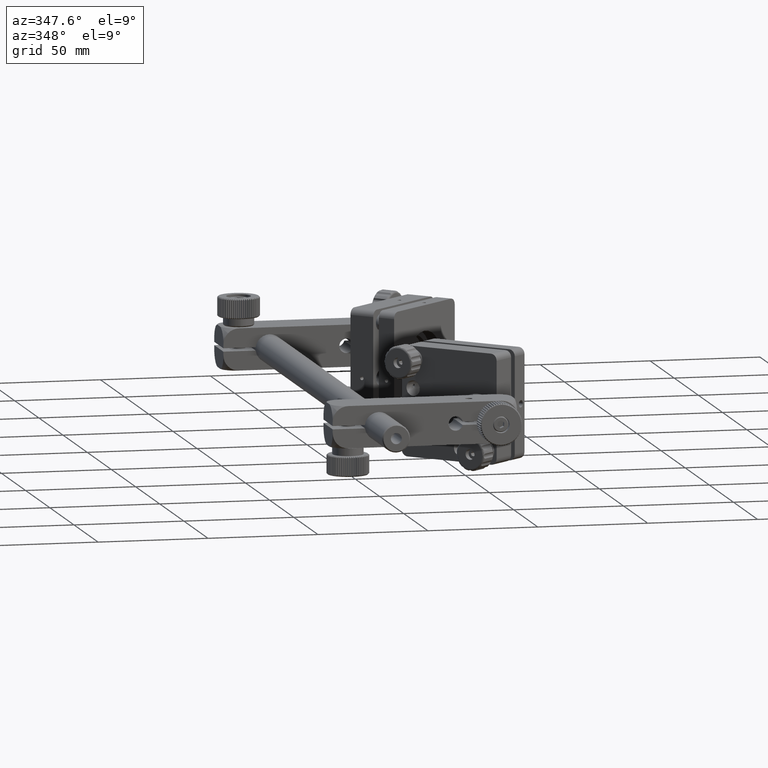
[diagram: clean part render]
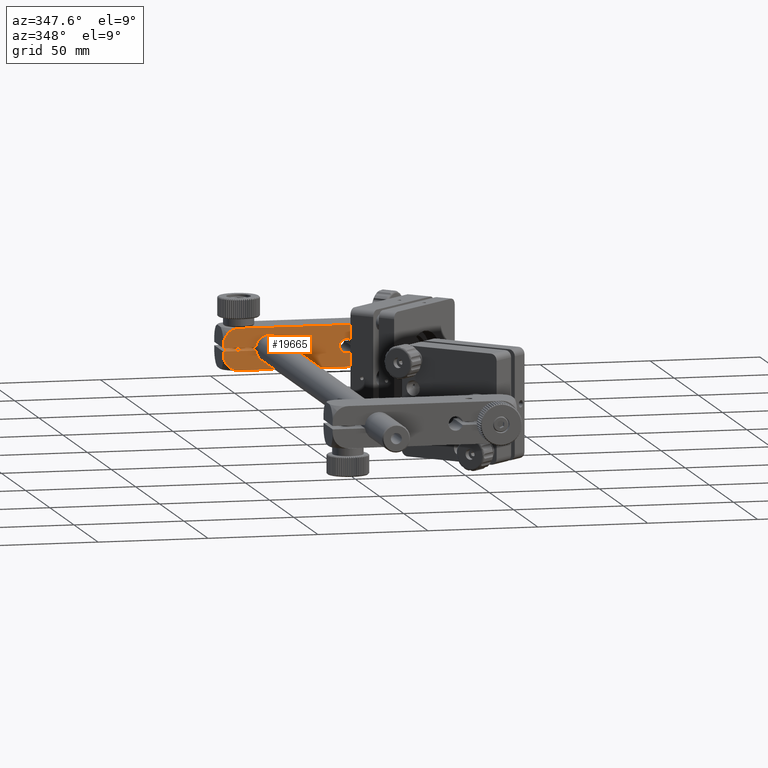
[diagram: same view with one face highlighted and labeled with its STEP entity id]
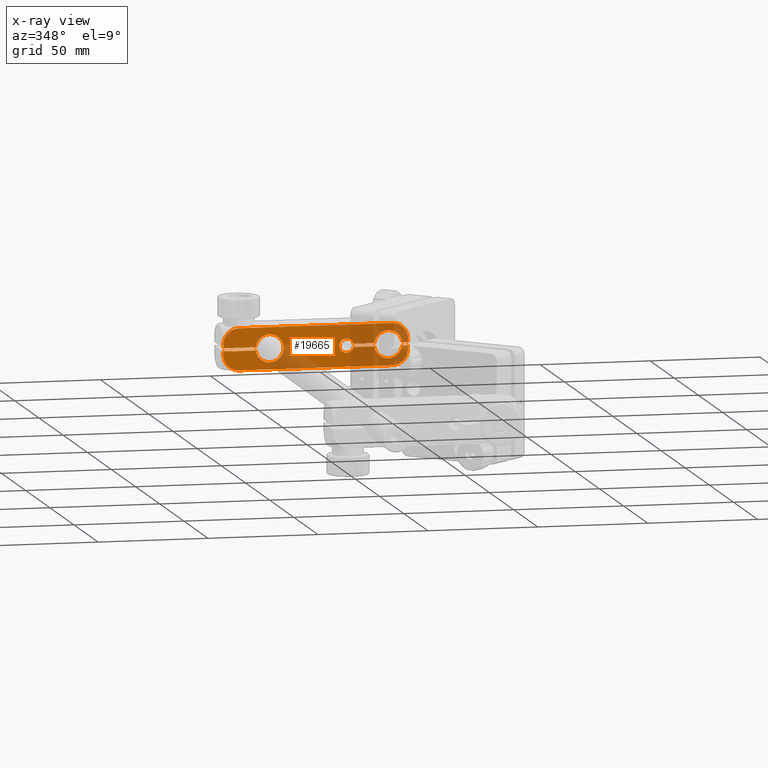
[diagram: x-ray of the same camera — body ghosted, the highlighted face saturated]
A machine part, auxiliary view. The second image highlights one B-rep face of the part: STEP entity #19665.
The next image is the same camera in x-ray: the body ghosted, the highlighted face saturated — about 37% of this face is hidden behind the body in this view.
In plain terms, the highlighted planar face has unit normal (0, 1, -0).
Its self-contained STEP definition (entity closure, byte-faithful):
#391 = CARTESIAN_POINT ( 'NONE',  ( 60.92893218813470213, 277.5265331105718474, 7.428932188134489856 ) ) ;
#756 = EDGE_LOOP ( 'NONE', ( #52141, #17683, #25090, #62329, #43593, #35736, #56072, #10255, #5664, #12792, #43979, #19788, #30648, #37317, #2417, #58050, #48064, #11744, #5091, #36421, #59954, #34017, #40334, #12573, #16869, #53700, #24160, #5972, #2321 ) ) ;
#1091 = EDGE_CURVE ( 'NONE', #58950, #2808, #36358, .T. ) ;
#2321 = ORIENTED_EDGE ( 'NONE', *, *, #41288, .F. ) ;
#2417 = ORIENTED_EDGE ( 'NONE', *, *, #57145, .T. ) ;
#2808 = VERTEX_POINT ( 'NONE', #50247 ) ;
#2943 = DIRECTION ( 'NONE',  ( 2.465190328815663534E-32, -2.958228394578796022E-31, -1.000000000000000000 ) ) ;
#3181 = DIRECTION ( 'NONE',  ( 0.000000000000000000, 0.000000000000000000, 1.000000000000000000 ) ) ;
#3347 = EDGE_CURVE ( 'NONE', #14189, #61701, #32255, .T. ) ;
#3378 = CARTESIAN_POINT ( 'NONE',  ( 60.30555310817400994, 277.5265331105718474, -0.7500000000000442979 ) ) ;
#4830 = DIRECTION ( 'NONE',  ( 0.000000000000000000, 0.000000000000000000, 1.000000000000000000 ) ) ;
#5091 = ORIENTED_EDGE ( 'NONE', *, *, #49155, .T. ) ;
#5105 = DIRECTION ( 'NONE',  ( 4.299226218971816190E-31, 1.000000000000000000, 2.958228394578794270E-31 ) ) ;
#5664 = ORIENTED_EDGE ( 'NONE', *, *, #46095, .F. ) ;
#5870 = DIRECTION ( 'NONE',  ( 0.000000000000000000, 0.000000000000000000, 1.000000000000000000 ) ) ;
#5895 = DIRECTION ( 'NONE',  ( 2.465190328815663534E-32, -2.958228394578796022E-31, -1.000000000000000000 ) ) ;
#5960 = CIRCLE ( 'NONE', #42693, 6.349999999999996092 ) ;
#5972 = ORIENTED_EDGE ( 'NONE', *, *, #3347, .F. ) ;
#6816 = CARTESIAN_POINT ( 'NONE',  ( 63.00000000000019185, 277.5265331105718474, 9.499999999999939604 ) ) ;
#6901 = CIRCLE ( 'NONE', #9984, 6.349999999999996092 ) ;
#7167 = CIRCLE ( 'NONE', #56161, 3.249999999999998668 ) ;
#7289 = CARTESIAN_POINT ( 'NONE',  ( 38.16227766016862688, 277.5265331105718474, -0.7500000000000442979 ) ) ;
#7300 = DIRECTION ( 'NONE',  ( 0.000000000000000000, 0.000000000000000000, 1.000000000000000000 ) ) ;
#7688 = VECTOR ( 'NONE', #57055, 1000.000000000000000 ) ;
#8085 = CARTESIAN_POINT ( 'NONE',  ( 35.00000000000025580, 277.5265331105718474, -5.213129854413294084E-14 ) ) ;
#8588 = CARTESIAN_POINT ( 'NONE',  ( 38.16227766016862688, 277.5265331105718474, 0.7499999999999547029 ) ) ;
#8666 = EDGE_CURVE ( 'NONE', #41742, #61614, #58726, .T. ) ;
#8710 = CARTESIAN_POINT ( 'NONE',  ( 38.16227766016862688, 277.5265331105718474, 0.7499999999999547029 ) ) ;
#9152 = CARTESIAN_POINT ( 'NONE',  ( 35.00000000000025580, 277.5265331105718474, -5.213129854413294084E-14 ) ) ;
#9451 = LINE ( 'NONE', #33446, #39969 ) ;
#9634 = VECTOR ( 'NONE', #48082, 1000.000000000000000 ) ;
#9869 = DIRECTION ( 'NONE',  ( 0.000000000000000000, 0.000000000000000000, 1.000000000000000000 ) ) ;
#9921 = DIRECTION ( 'NONE',  ( 4.299226218971816190E-31, 1.000000000000000000, 2.958228394578794270E-31 ) ) ;
#9984 = AXIS2_PLACEMENT_3D ( 'NONE', #49943, #50255, #5870 ) ;
#10255 = ORIENTED_EDGE ( 'NONE', *, *, #47055, .T. ) ;
#10266 = VERTEX_POINT ( 'NONE', #45669 ) ;
#10315 = EDGE_CURVE ( 'NONE', #62203, #61762, #28308, .T. ) ;
#10463 = CARTESIAN_POINT ( 'NONE',  ( 47.69444689182646613, 277.5265331105718474, -0.7500000000000477396 ) ) ;
#10486 = VERTEX_POINT ( 'NONE', #8710 ) ;
#10653 = LINE ( 'NONE', #30188, #11031 ) ;
#11031 = VECTOR ( 'NONE', #5895, 1000.000000000000000 ) ;
#11193 = EDGE_CURVE ( 'NONE', #54997, #56889, #43410, .T. ) ;
#11572 = VERTEX_POINT ( 'NONE', #52896 ) ;
#11716 = CARTESIAN_POINT ( 'NONE',  ( 55.92893218813470213, 277.5265331105718474, -9.500000000000055067 ) ) ;
#11744 = ORIENTED_EDGE ( 'NONE', *, *, #62298, .T. ) ;
#12414 = CARTESIAN_POINT ( 'NONE',  ( 54.00000000000022737, 277.5265331105718474, -5.445805061639544501E-14 ) ) ;
#12573 = ORIENTED_EDGE ( 'NONE', *, *, #40732, .T. ) ;
#12792 = ORIENTED_EDGE ( 'NONE', *, *, #51358, .F. ) ;
#13125 = CARTESIAN_POINT ( 'NONE',  ( 35.00000000000025580, 277.5265331105718474, -3.250000000000052847 ) ) ;
#14189 = VERTEX_POINT ( 'NONE', #53521 ) ;
#14308 = EDGE_CURVE ( 'NONE', #62222, #58950, #46123, .T. ) ;
#14524 = VECTOR ( 'NONE', #60540, 1000.000000000000000 ) ;
#14576 = DIRECTION ( 'NONE',  ( 1.000000000000000000, 4.303078078860594165E-31, 2.465190328815664081E-32 ) ) ;
#14673 = AXIS2_PLACEMENT_3D ( 'NONE', #41533, #36730, #7300 ) ;
#14761 = AXIS2_PLACEMENT_3D ( 'NONE', #12414, #46318, #3181 ) ;
#14768 = AXIS2_PLACEMENT_3D ( 'NONE', #54305, #59129, #4830 ) ;
#15193 = CARTESIAN_POINT ( 'NONE',  ( 54.00000000000022737, 277.5265331105718474, -5.445805061639544501E-14 ) ) ;
#15224 = AXIS2_PLACEMENT_3D ( 'NONE', #40068, #58914, #29505 ) ;
#15830 = VECTOR ( 'NONE', #53297, 1000.000000000000000 ) ;
#16869 = ORIENTED_EDGE ( 'NONE', *, *, #22723, .F. ) ;
#17313 = CARTESIAN_POINT ( 'NONE',  ( -18.92893218813415857, 277.5265331105718474, -7.428932188134575121 ) ) ;
#17683 = ORIENTED_EDGE ( 'NONE', *, *, #30647, .T. ) ;
#18147 = CARTESIAN_POINT ( 'NONE',  ( 54.00000000000022737, 277.5265331105718474, 6.349999999999948130 ) ) ;
#18440 = CARTESIAN_POINT ( 'NONE',  ( 63.00000000000019185, 277.5265331105718474, 0.7499999999999548139 ) ) ;
#19565 = AXIS2_PLACEMENT_3D ( 'NONE', #20782, #30990, #45667 ) ;
#19665 = ADVANCED_FACE ( 'NONE', ( #39430 ), #58913, .F. ) ;
#19788 = ORIENTED_EDGE ( 'NONE', *, *, #51808, .F. ) ;
#19972 = CARTESIAN_POINT ( 'NONE',  ( 35.00000000000025580, 277.5265331105718474, -5.213129854413294084E-14 ) ) ;
#20214 = CARTESIAN_POINT ( 'NONE',  ( 54.00000000000022737, 277.5265331105718474, -5.445805061639544501E-14 ) ) ;
#20782 = CARTESIAN_POINT ( 'NONE',  ( -13.92893218813417633, 277.5265331105718474, -2.428932188134593328 ) ) ;
#21696 = VERTEX_POINT ( 'NONE', #3378 ) ;
#21798 = CARTESIAN_POINT ( 'NONE',  ( -20.99999999999968736, 277.5265331105718474, 9.499999999999939604 ) ) ;
#21930 = DIRECTION ( 'NONE',  ( 0.000000000000000000, 0.000000000000000000, 1.000000000000000000 ) ) ;
#22058 = VECTOR ( 'NONE', #48182, 1000.000000000000000 ) ;
#22183 = CARTESIAN_POINT ( 'NONE',  ( 60.92893218813470213, 277.5265331105718474, -7.428932188134575121 ) ) ;
#22723 = EDGE_CURVE ( 'NONE', #61614, #30018, #27066, .T. ) ;
#23945 = VERTEX_POINT ( 'NONE', #17313 ) ;
#24160 = ORIENTED_EDGE ( 'NONE', *, *, #55491, .F. ) ;
#25090 = ORIENTED_EDGE ( 'NONE', *, *, #14308, .T. ) ;
#25639 = DIRECTION ( 'NONE',  ( 4.299226218971816190E-31, 1.000000000000000000, 2.958228394578794270E-31 ) ) ;
#25747 = VERTEX_POINT ( 'NONE', #27996 ) ;
#26040 = CIRCLE ( 'NONE', #14768, 6.349999999999996092 ) ;
#26059 = DIRECTION ( 'NONE',  ( 0.000000000000000000, 0.000000000000000000, 1.000000000000000000 ) ) ;
#26431 = DIRECTION ( 'NONE',  ( 2.465190328815663534E-32, -2.958228394578796022E-31, -1.000000000000000000 ) ) ;
#26454 = CARTESIAN_POINT ( 'NONE',  ( 55.92893218813471634, 277.5265331105718474, 2.428932188134505399 ) ) ;
#26561 = CARTESIAN_POINT ( 'NONE',  ( 60.30555310817400994, 277.5265331105718474, 0.7499999999999553690 ) ) ;
#26790 = VECTOR ( 'NONE', #14576, 1000.000000000000000 ) ;
#26875 = AXIS2_PLACEMENT_3D ( 'NONE', #37329, #47822, #42730 ) ;
#26968 = VECTOR ( 'NONE', #43118, 1000.000000000000000 ) ;
#27066 = LINE ( 'NONE', #61549, #56082 ) ;
#27620 = DIRECTION ( 'NONE',  ( 4.299226218971816190E-31, 1.000000000000000000, 2.958228394578794270E-31 ) ) ;
#27980 = EDGE_CURVE ( 'NONE', #40716, #45979, #61732, .T. ) ;
#27996 = CARTESIAN_POINT ( 'NONE',  ( -18.92893218813415857, 277.5265331105718474, 7.428932188134488079 ) ) ;
#28017 = DIRECTION ( 'NONE',  ( -1.000000000000000000, -4.299226218971818817E-31, -2.465190328815663534E-32 ) ) ;
#28306 = CIRCLE ( 'NONE', #41591, 7.071067811865463071 ) ;
#28308 = LINE ( 'NONE', #47777, #7688 ) ;
#28890 = DIRECTION ( 'NONE',  ( -2.465190328815663534E-32, 2.958228394578796460E-31, 1.000000000000000000 ) ) ;
#29505 = DIRECTION ( 'NONE',  ( 0.000000000000000000, 0.000000000000000000, 1.000000000000000000 ) ) ;
#30018 = VERTEX_POINT ( 'NONE', #18440 ) ;
#30188 = CARTESIAN_POINT ( 'NONE',  ( -20.99999999999968736, 277.5265331105718474, 9.499999999999939604 ) ) ;
#30303 = EDGE_CURVE ( 'NONE', #21696, #63184, #5960, .T. ) ;
#30647 = EDGE_CURVE ( 'NONE', #10266, #62222, #10653, .T. ) ;
#30648 = ORIENTED_EDGE ( 'NONE', *, *, #34797, .F. ) ;
#30882 = VERTEX_POINT ( 'NONE', #58226 ) ;
#30990 = DIRECTION ( 'NONE',  ( 4.299226218971816190E-31, 1.000000000000000000, 2.958228394578794270E-31 ) ) ;
#31586 = VECTOR ( 'NONE', #37417, 1000.000000000000000 ) ;
#31847 = AXIS2_PLACEMENT_3D ( 'NONE', #51932, #47141, #21930 ) ;
#32255 = LINE ( 'NONE', #51727, #15830 ) ;
#32293 = LINE ( 'NONE', #6816, #31586 ) ;
#33446 = CARTESIAN_POINT ( 'NONE',  ( 60.30555310817400994, 277.5265331105718474, -0.7500000000000442979 ) ) ;
#33595 = CARTESIAN_POINT ( 'NONE',  ( 63.00000000000019185, 277.5265331105719042, 2.428932188134516057 ) ) ;
#34017 = ORIENTED_EDGE ( 'NONE', *, *, #43185, .T. ) ;
#34501 = CARTESIAN_POINT ( 'NONE',  ( 55.92893218813471634, 277.5265331105718474, -2.428932188134591996 ) ) ;
#34574 = VERTEX_POINT ( 'NONE', #40427 ) ;
#34589 = EDGE_CURVE ( 'NONE', #36714, #10486, #54844, .T. ) ;
#34616 = CARTESIAN_POINT ( 'NONE',  ( -20.99999999999968736, 277.5265331105718474, 9.499999999999939604 ) ) ;
#34714 = DIRECTION ( 'NONE',  ( 0.000000000000000000, 0.000000000000000000, 1.000000000000000000 ) ) ;
#34797 = EDGE_CURVE ( 'NONE', #34574, #57425, #28306, .T. ) ;
#34983 = DIRECTION ( 'NONE',  ( 0.000000000000000000, 0.000000000000000000, 1.000000000000000000 ) ) ;
#35300 = EDGE_CURVE ( 'NONE', #2808, #51528, #6901, .T. ) ;
#35388 = LINE ( 'NONE', #63176, #26790 ) ;
#35457 = CIRCLE ( 'NONE', #42550, 7.071067811865462183 ) ;
#35566 = CARTESIAN_POINT ( 'NONE',  ( -6.305553108173489463, 277.5265331105718474, 0.7499999999999548139 ) ) ;
#35736 = ORIENTED_EDGE ( 'NONE', *, *, #61642, .T. ) ;
#36358 = CIRCLE ( 'NONE', #44518, 6.349999999999996092 ) ;
#36421 = ORIENTED_EDGE ( 'NONE', *, *, #34589, .T. ) ;
#36714 = VERTEX_POINT ( 'NONE', #61961 ) ;
#36730 = DIRECTION ( 'NONE',  ( 4.299226218971816190E-31, 1.000000000000000000, 2.958228394578794270E-31 ) ) ;
#37317 = ORIENTED_EDGE ( 'NONE', *, *, #49742, .F. ) ;
#37329 = CARTESIAN_POINT ( 'NONE',  ( -13.92893218813417633, 277.5265331105718474, 2.428932188134504067 ) ) ;
#37417 = DIRECTION ( 'NONE',  ( 2.465190328815663534E-32, -2.958228394578796022E-31, -1.000000000000000000 ) ) ;
#37832 = EDGE_CURVE ( 'NONE', #10266, #25747, #47898, .T. ) ;
#37857 = CARTESIAN_POINT ( 'NONE',  ( -20.99999999999968736, 277.5265331105718474, 0.7499999999999548139 ) ) ;
#38039 = VERTEX_POINT ( 'NONE', #13125 ) ;
#38592 = DIRECTION ( 'NONE',  ( 4.299226218971816190E-31, 1.000000000000000000, 2.958228394578794270E-31 ) ) ;
#39430 = FACE_OUTER_BOUND ( 'NONE', #756, .T. ) ;
#39969 = VECTOR ( 'NONE', #28017, 1000.000000000000000 ) ;
#40068 = CARTESIAN_POINT ( 'NONE',  ( -13.92893218813417633, 277.5265331105718474, 2.428932188134504067 ) ) ;
#40138 = CIRCLE ( 'NONE', #26875, 7.071067811865462183 ) ;
#40334 = ORIENTED_EDGE ( 'NONE', *, *, #27980, .T. ) ;
#40427 = CARTESIAN_POINT ( 'NONE',  ( 63.00000000000019185, 277.5265331105719042, -2.428932188134603098 ) ) ;
#40604 = CARTESIAN_POINT ( 'NONE',  ( -20.99999999999968736, 277.5265331105718474, -0.7500000000000446310 ) ) ;
#40702 = VECTOR ( 'NONE', #2943, 1000.000000000000000 ) ;
#40716 = VERTEX_POINT ( 'NONE', #18147 ) ;
#40732 = EDGE_CURVE ( 'NONE', #45979, #30018, #35388, .T. ) ;
#40986 = CARTESIAN_POINT ( 'NONE',  ( -13.92893218813417633, 277.5265331105718474, -9.500000000000033751 ) ) ;
#41054 = CIRCLE ( 'NONE', #31847, 7.071067811865463071 ) ;
#41288 = EDGE_CURVE ( 'NONE', #25747, #14189, #40138, .T. ) ;
#41359 = CARTESIAN_POINT ( 'NONE',  ( -20.99999999999968736, 277.5265331105718474, 0.7499999999999548139 ) ) ;
#41376 = DIRECTION ( 'NONE',  ( 4.299226218971816190E-31, 1.000000000000000000, 2.958228394578794270E-31 ) ) ;
#41533 = CARTESIAN_POINT ( 'NONE',  ( 55.92893218813471634, 277.5265331105718474, 2.428932188134505399 ) ) ;
#41591 = AXIS2_PLACEMENT_3D ( 'NONE', #34501, #5105, #9869 ) ;
#41742 = VERTEX_POINT ( 'NONE', #391 ) ;
#42139 = CARTESIAN_POINT ( 'NONE',  ( 2.922111946815621386E-13, 277.5265331105718474, -6.350000000000047606 ) ) ;
#42144 = EDGE_CURVE ( 'NONE', #10486, #11572, #48207, .T. ) ;
#42550 = AXIS2_PLACEMENT_3D ( 'NONE', #53013, #44066, #49184 ) ;
#42693 = AXIS2_PLACEMENT_3D ( 'NONE', #15193, #55441, #34714 ) ;
#42730 = DIRECTION ( 'NONE',  ( 0.000000000000000000, 0.000000000000000000, 1.000000000000000000 ) ) ;
#43118 = DIRECTION ( 'NONE',  ( 1.000000000000000000, 4.299295579181839416E-31, 1.137413894084779007E-17 ) ) ;
#43185 = EDGE_CURVE ( 'NONE', #11572, #40716, #49516, .T. ) ;
#43410 = LINE ( 'NONE', #63212, #22058 ) ;
#43562 = DIRECTION ( 'NONE',  ( 4.299226218971817066E-31, 1.000000000000000000, -2.958228394578796460E-31 ) ) ;
#43568 = CARTESIAN_POINT ( 'NONE',  ( -20.99999999999968736, 277.5265331105719042, -2.428932188134604431 ) ) ;
#43593 = ORIENTED_EDGE ( 'NONE', *, *, #35300, .T. ) ;
#43979 = ORIENTED_EDGE ( 'NONE', *, *, #11193, .T. ) ;
#44066 = DIRECTION ( 'NONE',  ( 4.299226218971816190E-31, 1.000000000000000000, 2.958228394578794270E-31 ) ) ;
#44489 = DIRECTION ( 'NONE',  ( 0.000000000000000000, 0.000000000000000000, 1.000000000000000000 ) ) ;
#44518 = AXIS2_PLACEMENT_3D ( 'NONE', #55418, #41376, #26059 ) ;
#45056 = CARTESIAN_POINT ( 'NONE',  ( 55.92893218813471634, 277.5265331105718474, 9.499999999999939604 ) ) ;
#45667 = DIRECTION ( 'NONE',  ( 0.000000000000000000, 0.000000000000000000, 1.000000000000000000 ) ) ;
#45669 = CARTESIAN_POINT ( 'NONE',  ( -20.99999999999968736, 277.5265331105719042, 2.428932188134514725 ) ) ;
#45979 = VERTEX_POINT ( 'NONE', #26561 ) ;
#46095 = EDGE_CURVE ( 'NONE', #23945, #53589, #35457, .T. ) ;
#46123 = LINE ( 'NONE', #41359, #14524 ) ;
#46318 = DIRECTION ( 'NONE',  ( 4.299226218971816190E-31, 1.000000000000000000, 2.958228394578794270E-31 ) ) ;
#47055 = EDGE_CURVE ( 'NONE', #61762, #53589, #56627, .T. ) ;
#47079 = DIRECTION ( 'NONE',  ( 0.000000000000000000, 0.000000000000000000, 1.000000000000000000 ) ) ;
#47141 = DIRECTION ( 'NONE',  ( 4.299226218971816190E-31, 1.000000000000000000, 2.958228394578794270E-31 ) ) ;
#47746 = AXIS2_PLACEMENT_3D ( 'NONE', #34616, #43562, #28890 ) ;
#47777 = CARTESIAN_POINT ( 'NONE',  ( -20.99999999999968736, 277.5265331105718474, -0.7500000000000446310 ) ) ;
#47822 = DIRECTION ( 'NONE',  ( 4.299226218971816190E-31, 1.000000000000000000, 2.958228394578794270E-31 ) ) ;
#47898 = CIRCLE ( 'NONE', #15224, 7.071067811865462183 ) ;
#48064 = ORIENTED_EDGE ( 'NONE', *, *, #54323, .T. ) ;
#48082 = DIRECTION ( 'NONE',  ( -1.000000000000000000, -4.303078078860594165E-31, -2.465190328815664081E-32 ) ) ;
#48182 = DIRECTION ( 'NONE',  ( 1.000000000000000000, 4.303078078860594165E-31, 2.465190328815664081E-32 ) ) ;
#48207 = LINE ( 'NONE', #8588, #26968 ) ;
#48919 = DIRECTION ( 'NONE',  ( 0.000000000000000000, 0.000000000000000000, 1.000000000000000000 ) ) ;
#49155 = EDGE_CURVE ( 'NONE', #38039, #36714, #7167, .T. ) ;
#49184 = DIRECTION ( 'NONE',  ( 0.000000000000000000, 0.000000000000000000, 1.000000000000000000 ) ) ;
#49349 = DIRECTION ( 'NONE',  ( 4.299226218971816190E-31, 1.000000000000000000, 2.958228394578794270E-31 ) ) ;
#49422 = CIRCLE ( 'NONE', #14673, 7.071067811865463071 ) ;
#49516 = CIRCLE ( 'NONE', #14761, 6.349999999999998757 ) ;
#49742 = EDGE_CURVE ( 'NONE', #60210, #34574, #32293, .T. ) ;
#49943 = CARTESIAN_POINT ( 'NONE',  ( 2.914335439641035919E-13, 277.5265331105718474, -4.784517630575461412E-14 ) ) ;
#50247 = CARTESIAN_POINT ( 'NONE',  ( 2.914335439641035919E-13, 277.5265331105718474, 6.349999999999951683 ) ) ;
#50255 = DIRECTION ( 'NONE',  ( 4.299226218971816190E-31, 1.000000000000000000, 2.958228394578794270E-31 ) ) ;
#51068 = LINE ( 'NONE', #7289, #9634 ) ;
#51358 = EDGE_CURVE ( 'NONE', #54997, #23945, #54230, .T. ) ;
#51528 = VERTEX_POINT ( 'NONE', #42139 ) ;
#51727 = CARTESIAN_POINT ( 'NONE',  ( -20.99999999999968736, 277.5265331105718474, 9.499999999999939604 ) ) ;
#51808 = EDGE_CURVE ( 'NONE', #57425, #56889, #41054, .T. ) ;
#51932 = CARTESIAN_POINT ( 'NONE',  ( 55.92893218813471634, 277.5265331105718474, -2.428932188134591996 ) ) ;
#52141 = ORIENTED_EDGE ( 'NONE', *, *, #37832, .F. ) ;
#52896 = CARTESIAN_POINT ( 'NONE',  ( 47.69444689182646613, 277.5265331105718474, 0.7499999999999551470 ) ) ;
#53013 = CARTESIAN_POINT ( 'NONE',  ( -13.92893218813417633, 277.5265331105718474, -2.428932188134593328 ) ) ;
#53242 = DIRECTION ( 'NONE',  ( 0.000000000000000000, 0.000000000000000000, 1.000000000000000000 ) ) ;
#53297 = DIRECTION ( 'NONE',  ( 1.000000000000000000, 4.303078078860594165E-31, 2.465190328815664081E-32 ) ) ;
#53521 = CARTESIAN_POINT ( 'NONE',  ( -13.92893218813417633, 277.5265331105718474, 9.499999999999944933 ) ) ;
#53589 = VERTEX_POINT ( 'NONE', #43568 ) ;
#53700 = ORIENTED_EDGE ( 'NONE', *, *, #8666, .F. ) ;
#54230 = CIRCLE ( 'NONE', #19565, 7.071067811865462183 ) ;
#54305 = CARTESIAN_POINT ( 'NONE',  ( 2.914335439641035919E-13, 277.5265331105718474, -4.784517630575461412E-14 ) ) ;
#54323 = EDGE_CURVE ( 'NONE', #63184, #30882, #51068, .T. ) ;
#54594 = AXIS2_PLACEMENT_3D ( 'NONE', #26454, #9921, #48919 ) ;
#54844 = CIRCLE ( 'NONE', #62009, 3.249999999999998668 ) ;
#54997 = VERTEX_POINT ( 'NONE', #40986 ) ;
#55418 = CARTESIAN_POINT ( 'NONE',  ( 2.914335439641035919E-13, 277.5265331105718474, -4.784517630575461412E-14 ) ) ;
#55441 = DIRECTION ( 'NONE',  ( 4.299226218971816190E-31, 1.000000000000000000, 2.958228394578794270E-31 ) ) ;
#55491 = EDGE_CURVE ( 'NONE', #61701, #41742, #49422, .T. ) ;
#55985 = CARTESIAN_POINT ( 'NONE',  ( 63.00000000000019185, 277.5265331105718474, -0.7500000000000442979 ) ) ;
#56040 = CARTESIAN_POINT ( 'NONE',  ( -6.305553108173489463, 277.5265331105718474, -0.7500000000000439648 ) ) ;
#56072 = ORIENTED_EDGE ( 'NONE', *, *, #10315, .T. ) ;
#56082 = VECTOR ( 'NONE', #26431, 1000.000000000000000 ) ;
#56161 = AXIS2_PLACEMENT_3D ( 'NONE', #9152, #38592, #53242 ) ;
#56627 = LINE ( 'NONE', #21798, #40702 ) ;
#56889 = VERTEX_POINT ( 'NONE', #11716 ) ;
#57055 = DIRECTION ( 'NONE',  ( -1.000000000000000000, -4.303165759142532642E-31, -2.213493669684007276E-17 ) ) ;
#57145 = EDGE_CURVE ( 'NONE', #60210, #21696, #9451, .T. ) ;
#57425 = VERTEX_POINT ( 'NONE', #22183 ) ;
#57678 = CIRCLE ( 'NONE', #57717, 3.249999999999998668 ) ;
#57717 = AXIS2_PLACEMENT_3D ( 'NONE', #8085, #27620, #47079 ) ;
#58050 = ORIENTED_EDGE ( 'NONE', *, *, #30303, .T. ) ;
#58226 = CARTESIAN_POINT ( 'NONE',  ( 38.16227766016862688, 277.5265331105718474, -0.7500000000000442979 ) ) ;
#58726 = CIRCLE ( 'NONE', #54594, 7.071067811865463071 ) ;
#58913 = PLANE ( 'NONE',  #47746 ) ;
#58914 = DIRECTION ( 'NONE',  ( 4.299226218971816190E-31, 1.000000000000000000, 2.958228394578794270E-31 ) ) ;
#58950 = VERTEX_POINT ( 'NONE', #35566 ) ;
#59129 = DIRECTION ( 'NONE',  ( 4.299226218971816190E-31, 1.000000000000000000, 2.958228394578794270E-31 ) ) ;
#59708 = AXIS2_PLACEMENT_3D ( 'NONE', #20214, #25639, #44489 ) ;
#59954 = ORIENTED_EDGE ( 'NONE', *, *, #42144, .T. ) ;
#60210 = VERTEX_POINT ( 'NONE', #55985 ) ;
#60540 = DIRECTION ( 'NONE',  ( 1.000000000000000000, 4.302990398578656563E-31, -2.213493669684002345E-17 ) ) ;
#61549 = CARTESIAN_POINT ( 'NONE',  ( 63.00000000000019185, 277.5265331105718474, 9.499999999999939604 ) ) ;
#61614 = VERTEX_POINT ( 'NONE', #33595 ) ;
#61642 = EDGE_CURVE ( 'NONE', #51528, #62203, #26040, .T. ) ;
#61701 = VERTEX_POINT ( 'NONE', #45056 ) ;
#61732 = CIRCLE ( 'NONE', #59708, 6.349999999999998757 ) ;
#61762 = VERTEX_POINT ( 'NONE', #40604 ) ;
#61961 = CARTESIAN_POINT ( 'NONE',  ( 35.00000000000025580, 277.5265331105718474, 3.249999999999948486 ) ) ;
#62009 = AXIS2_PLACEMENT_3D ( 'NONE', #19972, #49349, #34983 ) ;
#62203 = VERTEX_POINT ( 'NONE', #56040 ) ;
#62222 = VERTEX_POINT ( 'NONE', #37857 ) ;
#62298 = EDGE_CURVE ( 'NONE', #30882, #38039, #57678, .T. ) ;
#62329 = ORIENTED_EDGE ( 'NONE', *, *, #1091, .T. ) ;
#63176 = CARTESIAN_POINT ( 'NONE',  ( 60.30555310817400994, 277.5265331105718474, 0.7499999999999548139 ) ) ;
#63184 = VERTEX_POINT ( 'NONE', #10463 ) ;
#63212 = CARTESIAN_POINT ( 'NONE',  ( -20.99999999999968736, 277.5265331105718474, -9.500000000000039080 ) ) ;